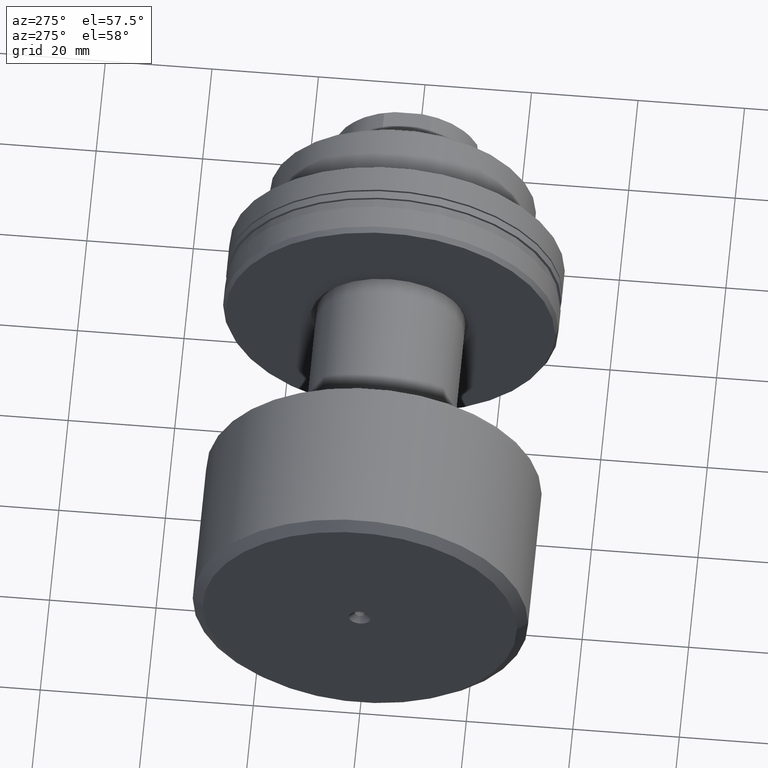
[diagram: clean part render]
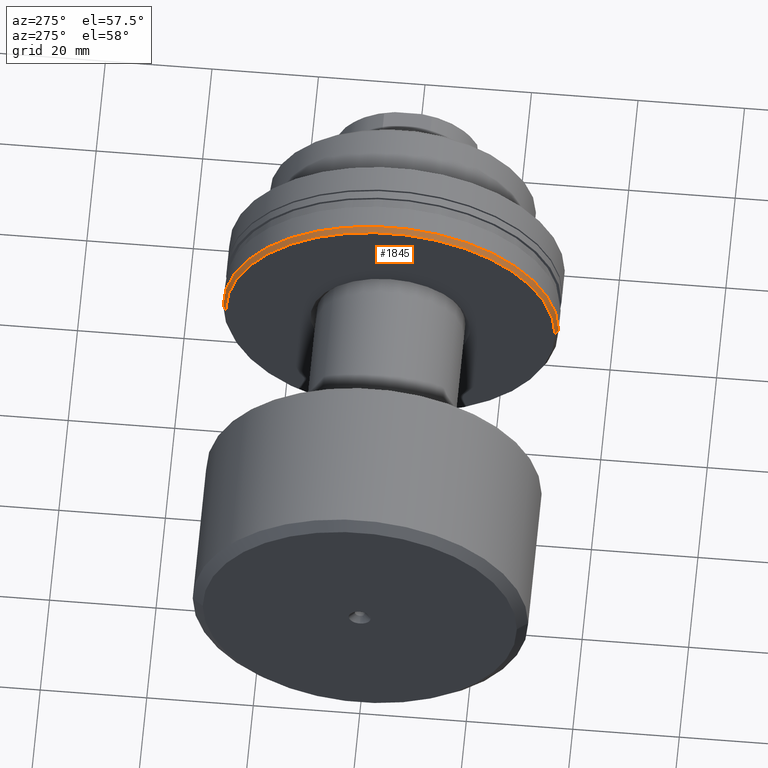
[diagram: same view with one face highlighted and labeled with its STEP entity id]
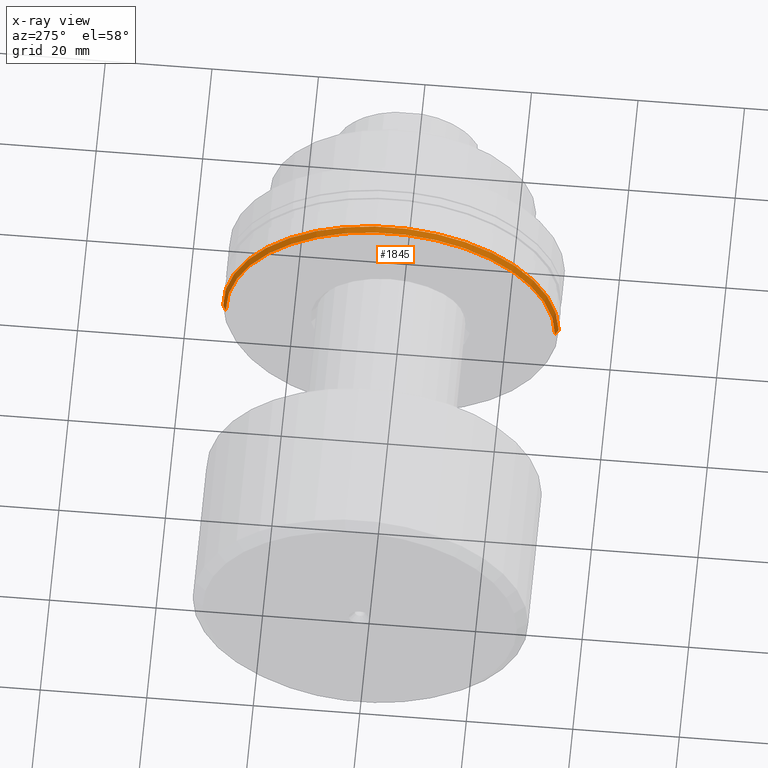
[diagram: x-ray of the same camera — body ghosted, the highlighted face saturated]
A machine part, auxiliary view. The second image highlights one B-rep face of the part: STEP entity #1845.
The next image is the same camera in x-ray: the body ghosted, the highlighted face saturated — about 0% of this face is hidden behind the body in this view.
In plain terms, the highlighted conical surface has half-angle 30 deg.
Its self-contained STEP definition (entity closure, byte-faithful):
#35 = VERTEX_POINT ( 'NONE', #1306 ) ;
#50 = DIRECTION ( 'NONE',  ( 0.8660254037844368202, -0.5000000000000032196, 6.123233995736826433E-17 ) ) ;
#176 = ORIENTED_EDGE ( 'NONE', *, *, #253, .T. ) ;
#191 = DIRECTION ( 'NONE',  ( 0.8660254037844348218, 0.5000000000000065503, 0.000000000000000000 ) ) ;
#244 = CONICAL_SURFACE ( 'NONE', #1256, 30.92264973081047330, 0.5235987755983044778 ) ;
#253 = EDGE_CURVE ( 'NONE', #1160, #1754, #504, .T. ) ;
#306 = ORIENTED_EDGE ( 'NONE', *, *, #828, .F. ) ;
#369 = ORIENTED_EDGE ( 'NONE', *, *, #2176, .T. ) ;
#504 = CIRCLE ( 'NONE', #1219, 30.92264973081047330 ) ;
#696 = AXIS2_PLACEMENT_3D ( 'NONE', #779, #1094, #941 ) ;
#779 = CARTESIAN_POINT ( 'NONE',  ( -31.20000000000024087, -1.776838885609560808E-15, 0.000000000000000000 ) ) ;
#792 = LINE ( 'NONE', #1827, #2190 ) ;
#828 = EDGE_CURVE ( 'NONE', #35, #1425, #925, .T. ) ;
#911 = ORIENTED_EDGE ( 'NONE', *, *, #2006, .F. ) ;
#925 = CIRCLE ( 'NONE', #696, 31.50000000000000000 ) ;
#941 = DIRECTION ( 'NONE',  ( -1.982541115402065307E-15, 1.000000000000000000, 0.000000000000000000 ) ) ;
#1047 = LINE ( 'NONE', #1979, #1182 ) ;
#1094 = DIRECTION ( 'NONE',  ( 1.000000000000000000, 1.931394410353556421E-15, -0.000000000000000000 ) ) ;
#1129 = CARTESIAN_POINT ( 'NONE',  ( -32.20000000000011653, 30.92264973081046975, 0.000000000000000000 ) ) ;
#1160 = VERTEX_POINT ( 'NONE', #1129 ) ;
#1182 = VECTOR ( 'NONE', #191, 1000.000000000000227 ) ;
#1219 = AXIS2_PLACEMENT_3D ( 'NONE', #2206, #2217, #1692 ) ;
#1256 = AXIS2_PLACEMENT_3D ( 'NONE', #2102, #1739, #2246 ) ;
#1306 = CARTESIAN_POINT ( 'NONE',  ( -31.20000000000030482, 31.50000000000000711, 0.000000000000000000 ) ) ;
#1339 = CARTESIAN_POINT ( 'NONE',  ( -31.20000000000018048, -31.49999999999999289, 3.857637417314162689E-15 ) ) ;
#1425 = VERTEX_POINT ( 'NONE', #1339 ) ;
#1672 = CARTESIAN_POINT ( 'NONE',  ( -32.19999999999999574, -30.92264973081047685, 3.822284909356672259E-15 ) ) ;
#1692 = DIRECTION ( 'NONE',  ( -2.019556722299304144E-15, 1.000000000000000000, 0.000000000000000000 ) ) ;
#1739 = DIRECTION ( 'NONE',  ( 1.000000000000000000, 1.931394410353556421E-15, -0.000000000000000000 ) ) ;
#1754 = VERTEX_POINT ( 'NONE', #1672 ) ;
#1827 = CARTESIAN_POINT ( 'NONE',  ( -32.19999999999999574, -30.92264973081047685, 3.786932401399181040E-15 ) ) ;
#1832 = EDGE_LOOP ( 'NONE', ( #176, #369, #306, #911 ) ) ;
#1845 = ADVANCED_FACE ( 'NONE', ( #2053 ), #244, .T. ) ;
#1979 = CARTESIAN_POINT ( 'NONE',  ( -32.20000000000011653, 30.92264973081046975, 0.000000000000000000 ) ) ;
#2006 = EDGE_CURVE ( 'NONE', #1160, #35, #1047, .T. ) ;
#2053 = FACE_OUTER_BOUND ( 'NONE', #1832, .T. ) ;
#2102 = CARTESIAN_POINT ( 'NONE',  ( -32.20000000000005258, -3.708233295962754354E-15, 0.000000000000000000 ) ) ;
#2176 = EDGE_CURVE ( 'NONE', #1754, #1425, #792, .T. ) ;
#2190 = VECTOR ( 'NONE', #50, 1000.000000000000000 ) ;
#2206 = CARTESIAN_POINT ( 'NONE',  ( -32.20000000000005258, -3.708233295962754354E-15, 0.000000000000000000 ) ) ;
#2217 = DIRECTION ( 'NONE',  ( 1.000000000000000000, 1.931394410353556421E-15, -0.000000000000000000 ) ) ;
#2246 = DIRECTION ( 'NONE',  ( -2.019556722299304144E-15, 1.000000000000000000, 0.000000000000000000 ) ) ;